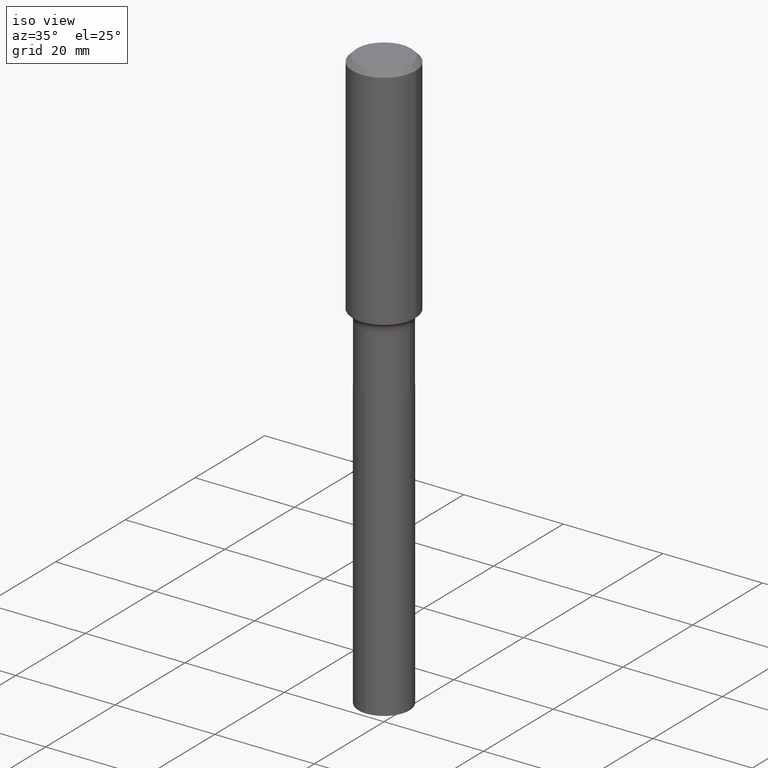
[diagram: clean part render]
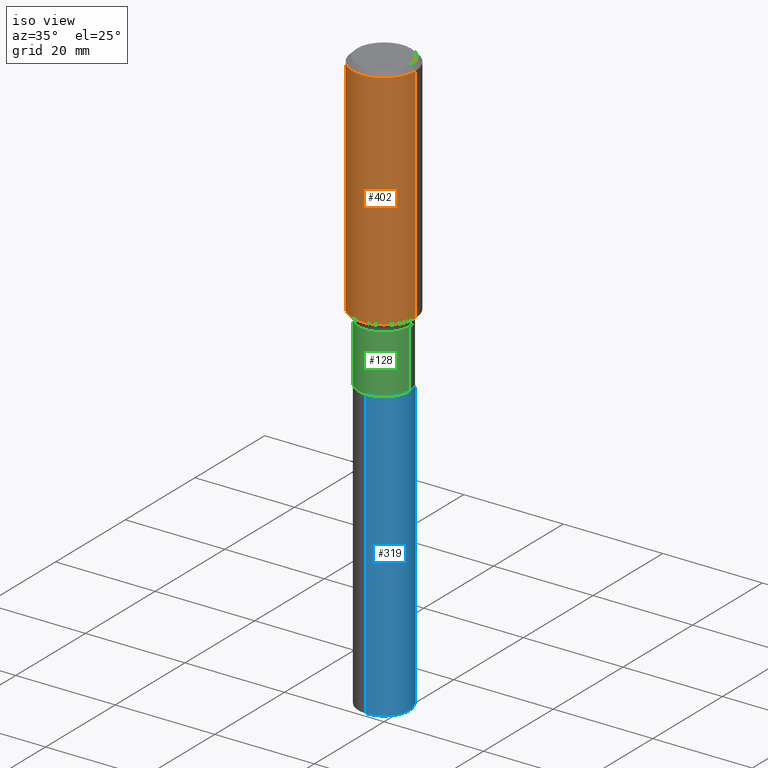
[diagram: same view with three faces highlighted in distinct colors, each labeled with its STEP entity id]
A machine part, iso view with three faces highlighted in distinct colors.
Their STEP definitions:

[orange] entity #402 — the highlighted cylindrical surface (partial cylindrical patch) has radius 6.35 mm, axis along (-0, 0, 1).
#7 = CARTESIAN_POINT ( 'NONE',  ( -0.2500000000000002776, -4.525417829077741609E-15, -1.804900000000000171 ) ) ;
#21 = CARTESIAN_POINT ( 'NONE',  ( -0.2500000000000001110, 1.776356839400251254E-15, -1.229733772563727006E-29 ) ) ;
#29 = ORIENTED_EDGE ( 'NONE', *, *, #274, .F. ) ;
#37 = DIRECTION ( 'NONE',  ( -2.445468806185136597E-29, 3.491481338843145583E-15, 1.000000000000000000 ) ) ;
#45 = CIRCLE ( 'NONE', #306, 0.2500000000000000000 ) ;
#54 = CARTESIAN_POINT ( 'NONE',  ( 0.2500000000000002776, -8.047515337899561907E-15, -1.804900000000000171 ) ) ;
#59 = ORIENTED_EDGE ( 'NONE', *, *, #369, .F. ) ;
#63 = CARTESIAN_POINT ( 'NONE',  ( 4.413826648283553199E-29, -6.301774668477994440E-15, -1.804900000000000171 ) ) ;
#71 = CARTESIAN_POINT ( 'NONE',  ( 9.170508023194327749E-31, -1.309305502066188813E-16, -0.03750000000000026923 ) ) ;
#75 = AXIS2_PLACEMENT_3D ( 'NONE', #63, #349, #293 ) ;
#81 = VERTEX_POINT ( 'NONE', #7 ) ;
#85 = CARTESIAN_POINT ( 'NONE',  ( 0.2500000000000000000, -1.876671219628185756E-15, -0.03750000000000026923 ) ) ;
#91 = EDGE_CURVE ( 'NONE', #360, #244, #97, .T. ) ;
#93 = CARTESIAN_POINT ( 'NONE',  ( 0.000000000000000000, 0.000000000000000000, 0.000000000000000000 ) ) ;
#97 = LINE ( 'NONE', #466, #373 ) ;
#105 = ORIENTED_EDGE ( 'NONE', *, *, #351, .T. ) ;
#111 = AXIS2_PLACEMENT_3D ( 'NONE', #93, #285, #175 ) ;
#112 = CARTESIAN_POINT ( 'NONE',  ( -0.2500000000000000000, -1.439995769942055506E-15, -0.03750000000000026923 ) ) ;
#113 = EDGE_LOOP ( 'NONE', ( #59, #105, #462, #29 ) ) ;
#118 = DIRECTION ( 'NONE',  ( -2.445468806185136877E-29, 3.491481338843145188E-15, 1.000000000000000000 ) ) ;
#125 = LINE ( 'NONE', #21, #193 ) ;
#166 = DIRECTION ( 'NONE',  ( -2.445468806185136877E-29, 3.491481338843145188E-15, 1.000000000000000000 ) ) ;
#175 = DIRECTION ( 'NONE',  ( 1.000000000000000000, -6.982962677686266711E-15, 4.876176775795935793E-29 ) ) ;
#193 = VECTOR ( 'NONE', #166, 39.37007874015748143 ) ;
#227 = DIRECTION ( 'NONE',  ( 1.000000000000000000, -6.982962677686266711E-15, 0.000000000000000000 ) ) ;
#244 = VERTEX_POINT ( 'NONE', #85 ) ;
#274 = EDGE_CURVE ( 'NONE', #307, #244, #45, .T. ) ;
#285 = DIRECTION ( 'NONE',  ( -2.445468806185136597E-29, 3.491481338843145583E-15, 1.000000000000000000 ) ) ;
#287 = CIRCLE ( 'NONE', #75, 0.2500000000000002220 ) ;
#293 = DIRECTION ( 'NONE',  ( 1.000000000000000000, -6.982962677686264344E-15, 0.000000000000000000 ) ) ;
#306 = AXIS2_PLACEMENT_3D ( 'NONE', #71, #37, #227 ) ;
#307 = VERTEX_POINT ( 'NONE', #112 ) ;
#349 = DIRECTION ( 'NONE',  ( -2.445468806185136597E-29, 3.491481338843145583E-15, 1.000000000000000000 ) ) ;
#351 = EDGE_CURVE ( 'NONE', #81, #360, #287, .T. ) ;
#360 = VERTEX_POINT ( 'NONE', #54 ) ;
#369 = EDGE_CURVE ( 'NONE', #81, #307, #125, .T. ) ;
#373 = VECTOR ( 'NONE', #118, 39.37007874015748143 ) ;
#402 = ADVANCED_FACE ( 'NONE', ( #439 ), #433, .T. ) ;
#433 = CYLINDRICAL_SURFACE ( 'NONE', #111, 0.2500000000000001110 ) ;
#439 = FACE_OUTER_BOUND ( 'NONE', #113, .T. ) ;
#462 = ORIENTED_EDGE ( 'NONE', *, *, #91, .T. ) ;
#466 = CARTESIAN_POINT ( 'NONE',  ( 0.2500000000000001110, -1.745740669421567467E-15, 1.219044193948984509E-29 ) ) ;

[blue] entity #319 — the highlighted cylindrical surface (edge-blend (fillet) strip) has radius 5.1308 mm, axis along (-0, 0, 1).
#6 = VECTOR ( 'NONE', #204, 39.37007874015748143 ) ;
#15 = DIRECTION ( 'NONE',  ( -6.982962677686266711E-15, -1.000000000000000000, 4.057199990590489741E-15 ) ) ;
#24 = VERTEX_POINT ( 'NONE', #342 ) ;
#35 = CIRCLE ( 'NONE', #308, 0.2020000000000000129 ) ;
#39 = VERTEX_POINT ( 'NONE', #485 ) ;
#49 = LINE ( 'NONE', #250, #64 ) ;
#64 = VECTOR ( 'NONE', #247, 39.37007874015748143 ) ;
#70 = VERTEX_POINT ( 'NONE', #179 ) ;
#83 = DIRECTION ( 'NONE',  ( -2.445167391470956759E-29, 3.491912981869311063E-15, 1.000000000000000000 ) ) ;
#137 = FACE_OUTER_BOUND ( 'NONE', #231, .T. ) ;
#164 = CARTESIAN_POINT ( 'NONE',  ( 5.726065209682497413E-29, -8.175303554901225434E-15, -2.341500000000000359 ) ) ;
#179 = CARTESIAN_POINT ( 'NONE',  ( -1.410558460892513155E-15, -0.2020000000000162499, -4.623809644646445172 ) ) ;
#189 = EDGE_CURVE ( 'NONE', #24, #329, #467, .T. ) ;
#204 = DIRECTION ( 'NONE',  ( -2.445167391470956759E-29, 3.491912981869310668E-15, 1.000000000000000000 ) ) ;
#209 = EDGE_CURVE ( 'NONE', #70, #39, #49, .T. ) ;
#221 = CARTESIAN_POINT ( 'NONE',  ( 5.726065209682497413E-29, -8.175303554901225434E-15, -2.341500000000000359 ) ) ;
#231 = EDGE_LOOP ( 'NONE', ( #266, #483, #344, #421 ) ) ;
#247 = DIRECTION ( 'NONE',  ( -2.445167391470956759E-29, 3.491912981869310668E-15, 1.000000000000000000 ) ) ;
#250 = CARTESIAN_POINT ( 'NONE',  ( -1.410558460892568573E-15, -0.2020000000000081730, -2.341499999999999471 ) ) ;
#254 = CYLINDRICAL_SURFACE ( 'NONE', #367, 0.2020000000000000129 ) ;
#266 = ORIENTED_EDGE ( 'NONE', *, *, #315, .T. ) ;
#270 = EDGE_CURVE ( 'NONE', #39, #329, #458, .T. ) ;
#281 = CARTESIAN_POINT ( 'NONE',  ( 1.435296326235459659E-15, 0.2019999999999918527, -2.341500000000000803 ) ) ;
#308 = AXIS2_PLACEMENT_3D ( 'NONE', #335, #83, #384 ) ;
#315 = EDGE_CURVE ( 'NONE', #70, #24, #35, .T. ) ;
#319 = ADVANCED_FACE ( 'NONE', ( #137 ), #254, .T. ) ;
#329 = VERTEX_POINT ( 'NONE', #359 ) ;
#335 = CARTESIAN_POINT ( 'NONE',  ( 1.130669433001165338E-28, -1.614493023168768447E-14, -4.623809644646446060 ) ) ;
#336 = AXIS2_PLACEMENT_3D ( 'NONE', #221, #446, #406 ) ;
#342 = CARTESIAN_POINT ( 'NONE',  ( 1.435296326235515669E-15, 0.2019999999999839146, -4.623809644646446060 ) ) ;
#344 = ORIENTED_EDGE ( 'NONE', *, *, #270, .F. ) ;
#359 = CARTESIAN_POINT ( 'NONE',  ( 1.435296326235515866E-15, 0.2019999999999918527, -2.341500000000000803 ) ) ;
#367 = AXIS2_PLACEMENT_3D ( 'NONE', #164, #472, #15 ) ;
#384 = DIRECTION ( 'NONE',  ( -6.982962677686266711E-15, -1.000000000000000000, 2.704799993726993161E-15 ) ) ;
#406 = DIRECTION ( 'NONE',  ( -6.982962677686266711E-15, -1.000000000000000000, 4.057199990590489741E-15 ) ) ;
#421 = ORIENTED_EDGE ( 'NONE', *, *, #209, .F. ) ;
#446 = DIRECTION ( 'NONE',  ( -2.445167391470956759E-29, 3.491912981869311063E-15, 1.000000000000000000 ) ) ;
#458 = CIRCLE ( 'NONE', #336, 0.2020000000000000129 ) ;
#467 = LINE ( 'NONE', #281, #6 ) ;
#472 = DIRECTION ( 'NONE',  ( -2.445167391470956759E-29, 3.491912981869311063E-15, 1.000000000000000000 ) ) ;
#483 = ORIENTED_EDGE ( 'NONE', *, *, #189, .T. ) ;
#485 = CARTESIAN_POINT ( 'NONE',  ( -1.410558460892568573E-15, -0.2020000000000081730, -2.341499999999999471 ) ) ;

[green] entity #128 — the highlighted cylindrical surface (edge-blend (fillet) strip) has radius 5.1308 mm, axis along (-0, 0, 1).
#42 = EDGE_LOOP ( 'NONE', ( #259, #232, #339, #368 ) ) ;
#55 = FACE_OUTER_BOUND ( 'NONE', #42, .T. ) ;
#77 = EDGE_CURVE ( 'NONE', #399, #268, #441, .T. ) ;
#80 = CARTESIAN_POINT ( 'NONE',  ( 5.724842475279405733E-29, -8.173557814231804720E-15, -2.341000000000000192 ) ) ;
#88 = AXIS2_PLACEMENT_3D ( 'NONE', #389, #169, #99 ) ;
#99 = DIRECTION ( 'NONE',  ( 1.000000000000000000, -6.982962677686266711E-15, 0.000000000000000000 ) ) ;
#108 = CARTESIAN_POINT ( 'NONE',  ( -0.2019999999999999851, 1.435296326235402270E-15, -9.936248882314910004E-30 ) ) ;
#110 = EDGE_CURVE ( 'NONE', #381, #399, #152, .T. ) ;
#128 = ADVANCED_FACE ( 'NONE', ( #55 ), #245, .T. ) ;
#150 = VERTEX_POINT ( 'NONE', #395 ) ;
#152 = CIRCLE ( 'NONE', #376, 0.2020000000000000129 ) ;
#156 = CIRCLE ( 'NONE', #88, 0.2019999999999999574 ) ;
#169 = DIRECTION ( 'NONE',  ( -2.445468806185136597E-29, 3.491481338843145583E-15, 1.000000000000000000 ) ) ;
#185 = AXIS2_PLACEMENT_3D ( 'NONE', #346, #440, #208 ) ;
#208 = DIRECTION ( 'NONE',  ( 1.000000000000000000, -6.982962677686267499E-15, 4.876176775795936353E-29 ) ) ;
#232 = ORIENTED_EDGE ( 'NONE', *, *, #110, .T. ) ;
#233 = CARTESIAN_POINT ( 'NONE',  ( 0.2019999999999999574, -7.963719785767326580E-15, -1.876900000000000457 ) ) ;
#245 = CYLINDRICAL_SURFACE ( 'NONE', #185, 0.2019999999999999851 ) ;
#252 = VECTOR ( 'NONE', #432, 39.37007874015748143 ) ;
#259 = ORIENTED_EDGE ( 'NONE', *, *, #290, .F. ) ;
#268 = VERTEX_POINT ( 'NONE', #233 ) ;
#289 = CARTESIAN_POINT ( 'NONE',  ( 0.2020000000000000129, -9.584116275124431668E-15, -2.341000000000000192 ) ) ;
#290 = EDGE_CURVE ( 'NONE', #381, #150, #333, .T. ) ;
#333 = LINE ( 'NONE', #108, #252 ) ;
#334 = EDGE_CURVE ( 'NONE', #150, #268, #156, .T. ) ;
#339 = ORIENTED_EDGE ( 'NONE', *, *, #77, .T. ) ;
#343 = DIRECTION ( 'NONE',  ( 1.000000000000000000, -6.982962677686269866E-15, 0.000000000000000000 ) ) ;
#346 = CARTESIAN_POINT ( 'NONE',  ( 0.000000000000000000, 0.000000000000000000, 0.000000000000000000 ) ) ;
#368 = ORIENTED_EDGE ( 'NONE', *, *, #334, .F. ) ;
#375 = DIRECTION ( 'NONE',  ( -2.445468806185136877E-29, 3.491481338843145188E-15, 1.000000000000000000 ) ) ;
#376 = AXIS2_PLACEMENT_3D ( 'NONE', #80, #378, #343 ) ;
#378 = DIRECTION ( 'NONE',  ( -2.445468806185136597E-29, 3.491481338843145583E-15, 1.000000000000000000 ) ) ;
#381 = VERTEX_POINT ( 'NONE', #429 ) ;
#389 = CARTESIAN_POINT ( 'NONE',  ( 4.589900402328883540E-29, -6.553161324874701209E-15, -1.876900000000000457 ) ) ;
#395 = CARTESIAN_POINT ( 'NONE',  ( -0.2019999999999999574, -5.928063243317850103E-15, -1.876900000000000457 ) ) ;
#399 = VERTEX_POINT ( 'NONE', #289 ) ;
#420 = CARTESIAN_POINT ( 'NONE',  ( 0.2019999999999999851, -1.410558460892625962E-15, 9.849877087107791198E-30 ) ) ;
#429 = CARTESIAN_POINT ( 'NONE',  ( -0.2020000000000000129, -5.928063243317849314E-15, -2.341000000000000192 ) ) ;
#432 = DIRECTION ( 'NONE',  ( -2.445468806185136877E-29, 3.491481338843145188E-15, 1.000000000000000000 ) ) ;
#440 = DIRECTION ( 'NONE',  ( -2.445468806185136597E-29, 3.491481338843145583E-15, 1.000000000000000000 ) ) ;
#441 = LINE ( 'NONE', #420, #448 ) ;
#448 = VECTOR ( 'NONE', #375, 39.37007874015748143 ) ;